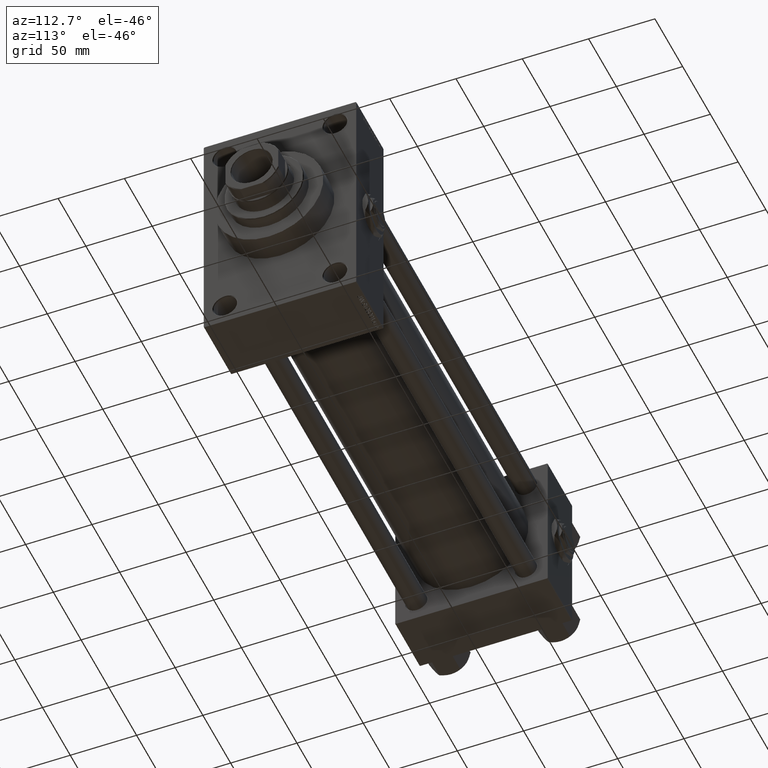
[diagram: clean part render]
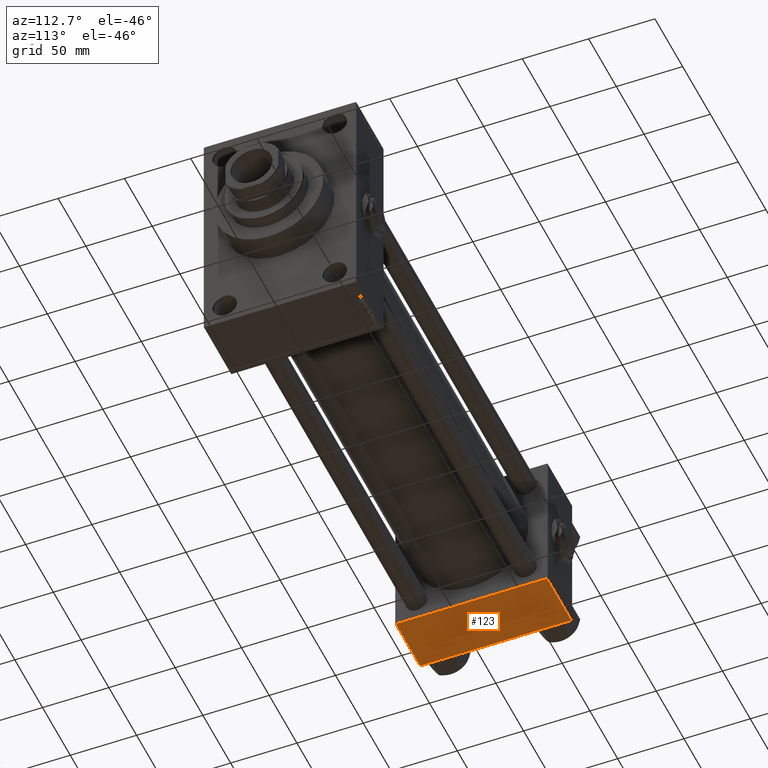
[diagram: same view with one face highlighted and labeled with its STEP entity id]
A machine part, auxiliary view. The second image highlights one B-rep face of the part: STEP entity #123.
In plain terms, the highlighted planar face has unit normal (0, 0, -1).
Its self-contained STEP definition (entity closure, byte-faithful):
#123 = ADVANCED_FACE ( 'NONE', ( #2193 ), #24133, .T. ) ;
#1426 = LINE ( 'NONE', #28367, #2072 ) ;
#1673 = VECTOR ( 'NONE', #21661, 1000.000000000000000 ) ;
#2072 = VECTOR ( 'NONE', #43699, 1000.000000000000000 ) ;
#2193 = FACE_OUTER_BOUND ( 'NONE', #14646, .T. ) ;
#2534 = CARTESIAN_POINT ( 'NONE',  ( 44.00000000000000000, 57.00000000000002132, -57.49999999999999289 ) ) ;
#3186 = DIRECTION ( 'NONE',  ( -1.000000000000000000, 0.000000000000000000, 0.000000000000000000 ) ) ;
#5435 = VECTOR ( 'NONE', #11184, 1000.000000000000000 ) ;
#8092 = VERTEX_POINT ( 'NONE', #22137 ) ;
#9507 = DIRECTION ( 'NONE',  ( 0.000000000000000000, 1.206764157201257045E-16, -1.000000000000000000 ) ) ;
#11184 = DIRECTION ( 'NONE',  ( 0.000000000000000000, -1.000000000000000000, -1.206764157201257045E-16 ) ) ;
#11619 = ORIENTED_EDGE ( 'NONE', *, *, #39471, .T. ) ;
#14614 = CARTESIAN_POINT ( 'NONE',  ( 44.00000000000000000, 57.00000000000002132, -57.49999999999999289 ) ) ;
#14646 = EDGE_LOOP ( 'NONE', ( #36566, #11619, #47939, #37747 ) ) ;
#15207 = VERTEX_POINT ( 'NONE', #43093 ) ;
#16676 = AXIS2_PLACEMENT_3D ( 'NONE', #35714, #9507, #32188 ) ;
#21661 = DIRECTION ( 'NONE',  ( 1.000000000000000000, 0.000000000000000000, 0.000000000000000000 ) ) ;
#22137 = CARTESIAN_POINT ( 'NONE',  ( 0.000000000000000000, 57.00000000000002132, -57.49999999999999289 ) ) ;
#24133 = PLANE ( 'NONE',  #16676 ) ;
#27927 = VECTOR ( 'NONE', #3186, 1000.000000000000000 ) ;
#28367 = CARTESIAN_POINT ( 'NONE',  ( 44.00000000000000000, 57.49999999999999289, -57.49999999999999289 ) ) ;
#29812 = CARTESIAN_POINT ( 'NONE',  ( 0.000000000000000000, 57.49999999999999289, -57.49999999999999289 ) ) ;
#31121 = VERTEX_POINT ( 'NONE', #45517 ) ;
#32188 = DIRECTION ( 'NONE',  ( 0.000000000000000000, 1.000000000000000000, 1.206764157201257045E-16 ) ) ;
#32244 = VERTEX_POINT ( 'NONE', #2534 ) ;
#33839 = LINE ( 'NONE', #29812, #5435 ) ;
#34170 = EDGE_CURVE ( 'NONE', #8092, #31121, #33839, .T. ) ;
#35714 = CARTESIAN_POINT ( 'NONE',  ( 44.00000000000000000, 57.49999999999999289, -57.49999999999999289 ) ) ;
#36566 = ORIENTED_EDGE ( 'NONE', *, *, #34170, .F. ) ;
#37747 = ORIENTED_EDGE ( 'NONE', *, *, #49250, .T. ) ;
#39370 = LINE ( 'NONE', #41698, #27927 ) ;
#39471 = EDGE_CURVE ( 'NONE', #8092, #32244, #49092, .T. ) ;
#41698 = CARTESIAN_POINT ( 'NONE',  ( 0.000000000000000000, -57.00000000000000711, -57.50000000000000711 ) ) ;
#43093 = CARTESIAN_POINT ( 'NONE',  ( 44.00000000000000000, -57.00000000000000711, -57.50000000000000711 ) ) ;
#43699 = DIRECTION ( 'NONE',  ( 0.000000000000000000, -1.000000000000000000, -1.206764157201257045E-16 ) ) ;
#45517 = CARTESIAN_POINT ( 'NONE',  ( 0.000000000000000000, -57.00000000000000711, -57.50000000000000711 ) ) ;
#46034 = EDGE_CURVE ( 'NONE', #32244, #15207, #1426, .T. ) ;
#47939 = ORIENTED_EDGE ( 'NONE', *, *, #46034, .T. ) ;
#49092 = LINE ( 'NONE', #14614, #1673 ) ;
#49250 = EDGE_CURVE ( 'NONE', #15207, #31121, #39370, .T. ) ;